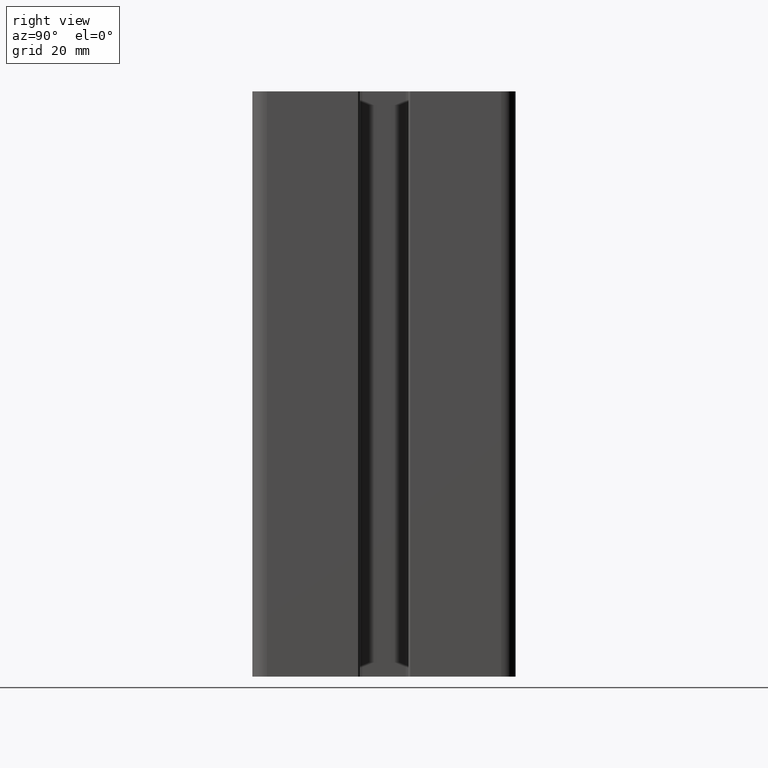
[diagram: clean part render]
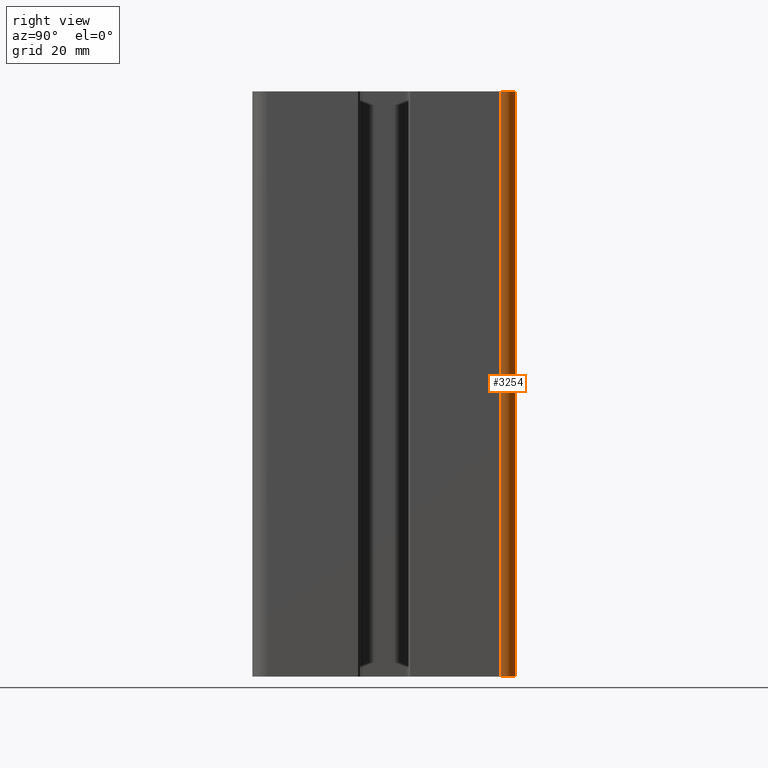
[diagram: same view with one face highlighted and labeled with its STEP entity id]
A machine part, right view. The second image highlights one B-rep face of the part: STEP entity #3254.
In plain terms, the highlighted cylindrical surface (edge-blend (fillet) strip) has radius 2.5 mm, axis along (0, 0, 1).
Its self-contained STEP definition (entity closure, byte-faithful):
#205=FACE_OUTER_BOUND('',#372,.T.);
#372=EDGE_LOOP('',(#2459,#2460,#2461,#2462));
#641=LINE('',#5189,#970);
#642=LINE('',#5195,#971);
#970=VECTOR('',#4201,100.);
#971=VECTOR('',#4208,100.);
#1210=CIRCLE('',#3513,2.49999999744999);
#1211=CIRCLE('',#3514,2.49999999744999);
#1460=VERTEX_POINT('',#5182);
#1463=VERTEX_POINT('',#5187);
#1464=VERTEX_POINT('',#5191);
#1465=VERTEX_POINT('',#5193);
#1879=EDGE_CURVE('',#1460,#1463,#641,.T.);
#1880=EDGE_CURVE('',#1464,#1460,#1210,.T.);
#1881=EDGE_CURVE('',#1465,#1463,#1211,.T.);
#1882=EDGE_CURVE('',#1464,#1465,#642,.T.);
#2459=ORIENTED_EDGE('',*,*,#1880,.T.);
#2460=ORIENTED_EDGE('',*,*,#1879,.T.);
#2461=ORIENTED_EDGE('',*,*,#1881,.F.);
#2462=ORIENTED_EDGE('',*,*,#1882,.F.);
#3128=CYLINDRICAL_SURFACE('',#3512,2.49999999744999);
#3254=ADVANCED_FACE('',(#205),#3128,.T.);
#3512=AXIS2_PLACEMENT_3D('',#5190,#4202,#4203);
#3513=AXIS2_PLACEMENT_3D('',#5192,#4204,#4205);
#3514=AXIS2_PLACEMENT_3D('',#5194,#4206,#4207);
#4201=DIRECTION('',(0.,0.,1.));
#4202=DIRECTION('center_axis',(0.,0.,1.));
#4203=DIRECTION('ref_axis',(1.,0.,0.));
#4204=DIRECTION('center_axis',(0.,0.,1.));
#4205=DIRECTION('ref_axis',(1.,0.,0.));
#4206=DIRECTION('center_axis',(0.,0.,1.));
#4207=DIRECTION('ref_axis',(1.,0.,0.));
#4208=DIRECTION('',(0.,0.,1.));
#5182=CARTESIAN_POINT('',(27.49999997195,22.49999997705,0.));
#5187=CARTESIAN_POINT('',(27.49999997195,22.49999997705,100.));
#5189=CARTESIAN_POINT('',(27.49999997195,22.49999997705,0.));
#5190=CARTESIAN_POINT('Origin',(27.49999997195,19.9999999796,0.));
#5191=CARTESIAN_POINT('',(29.9999999694001,19.9999999796,0.));
#5192=CARTESIAN_POINT('Origin',(27.49999997195,19.9999999796,0.));
#5193=CARTESIAN_POINT('',(29.9999999694001,19.9999999796,100.));
#5194=CARTESIAN_POINT('Origin',(27.49999997195,19.9999999796,100.));
#5195=CARTESIAN_POINT('',(29.9999999694001,19.9999999796,0.));